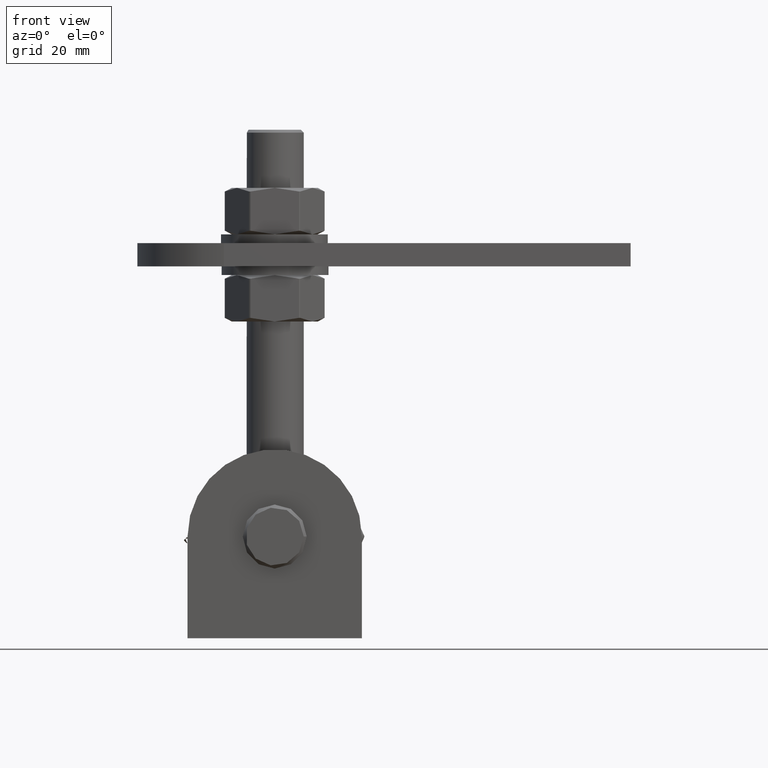
[diagram: clean part render]
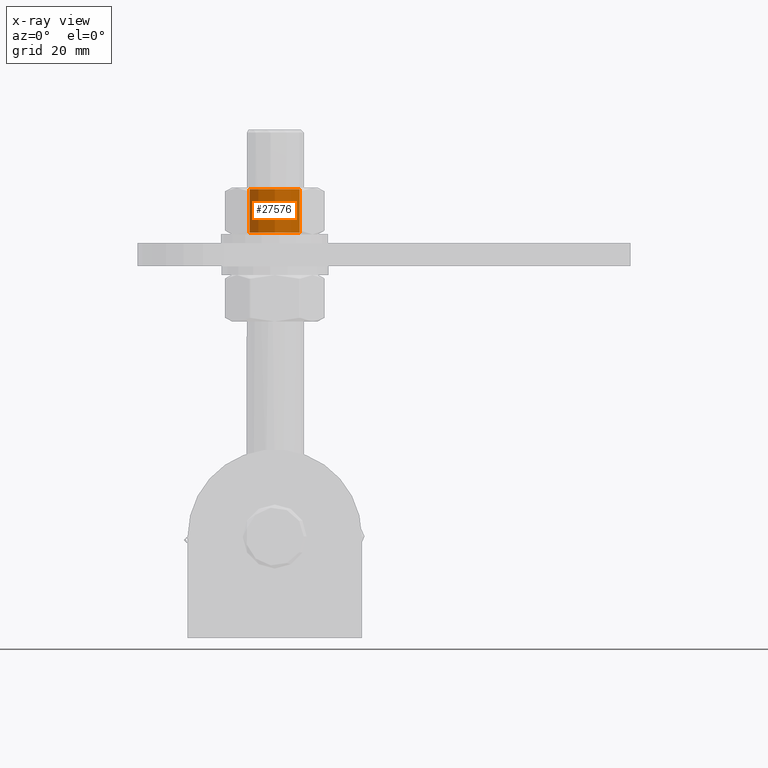
[diagram: x-ray — body ghosted, one internal face saturated and labeled with its STEP entity id]
A machine part, front view, then the same camera in x-ray: the body is ghosted and one INTERNAL B-rep face — a face not visible from any outside direction — is saturated and labeled: STEP entity #27576.
In plain terms, the highlighted cylindrical surface (bore or boss wall) has radius 8.75 mm, axis along (0, -0, 1).
Its self-contained STEP definition (entity closure, byte-faithful):
#977 = CARTESIAN_POINT ( 'NONE',  ( -3.697785498754009258E-29, 7.499999999999978684, 8.749999999999937828 ) ) ;
#2084 = DIRECTION ( 'NONE',  ( 0.000000000000000000, 1.000000000000000000, 1.029231301106134717E-41 ) ) ;
#4158 = EDGE_LOOP ( 'NONE', ( #15024 ) ) ;
#5067 = DIRECTION ( 'NONE',  ( -0.000000000000000000, -1.000000000000000000, -1.029231301106134717E-41 ) ) ;
#5434 = FACE_OUTER_BOUND ( 'NONE', #13044, .T. ) ;
#6670 = DIRECTION ( 'NONE',  ( -6.320590504639396930E-39, 0.000000000000000000, 1.000000000000000000 ) ) ;
#11292 = EDGE_CURVE ( 'NONE', #13723, #13723, #19651, .T. ) ;
#11425 = ORIENTED_EDGE ( 'NONE', *, *, #11292, .T. ) ;
#13044 = EDGE_LOOP ( 'NONE', ( #11425 ) ) ;
#13723 = VERTEX_POINT ( 'NONE', #977 ) ;
#14870 = CARTESIAN_POINT ( 'NONE',  ( 3.081487911019577365E-30, -7.499999999999978684, 0.000000000000000000 ) ) ;
#14980 = DIRECTION ( 'NONE',  ( -6.320590348244479223E-39, 0.000000000000000000, 1.000000000000000000 ) ) ;
#15024 = ORIENTED_EDGE ( 'NONE', *, *, #16425, .T. ) ;
#16391 = DIRECTION ( 'NONE',  ( -6.320590353131818729E-39, 0.000000000000000000, 1.000000000000000000 ) ) ;
#16425 = EDGE_CURVE ( 'NONE', #27017, #27017, #29356, .T. ) ;
#16722 = CARTESIAN_POINT ( 'NONE',  ( 0.000000000000000000, 8.000000000000007105, 0.000000000000000000 ) ) ;
#18061 = CARTESIAN_POINT ( 'NONE',  ( 3.081487855714411763E-30, -7.499999999999978684, 8.749999999999937828 ) ) ;
#19651 = CIRCLE ( 'NONE', #27150, 8.749999999999937828 ) ;
#20541 = CARTESIAN_POINT ( 'NONE',  ( -3.697785493223492838E-29, 7.499999999999978684, 0.000000000000000000 ) ) ;
#20650 = DIRECTION ( 'NONE',  ( 0.000000000000000000, 1.000000000000000000, 1.029231301106134717E-41 ) ) ;
#20696 = FACE_OUTER_BOUND ( 'NONE', #4158, .T. ) ;
#23368 = CYLINDRICAL_SURFACE ( 'NONE', #29442, 8.749999999999937828 ) ;
#27017 = VERTEX_POINT ( 'NONE', #18061 ) ;
#27150 = AXIS2_PLACEMENT_3D ( 'NONE', #20541, #20650, #6670 ) ;
#27576 = ADVANCED_FACE ( 'NONE', ( #5434, #20696 ), #23368, .F. ) ;
#28178 = AXIS2_PLACEMENT_3D ( 'NONE', #14870, #5067, #14980 ) ;
#29356 = CIRCLE ( 'NONE', #28178, 8.749999999999937828 ) ;
#29442 = AXIS2_PLACEMENT_3D ( 'NONE', #16722, #2084, #16391 ) ;